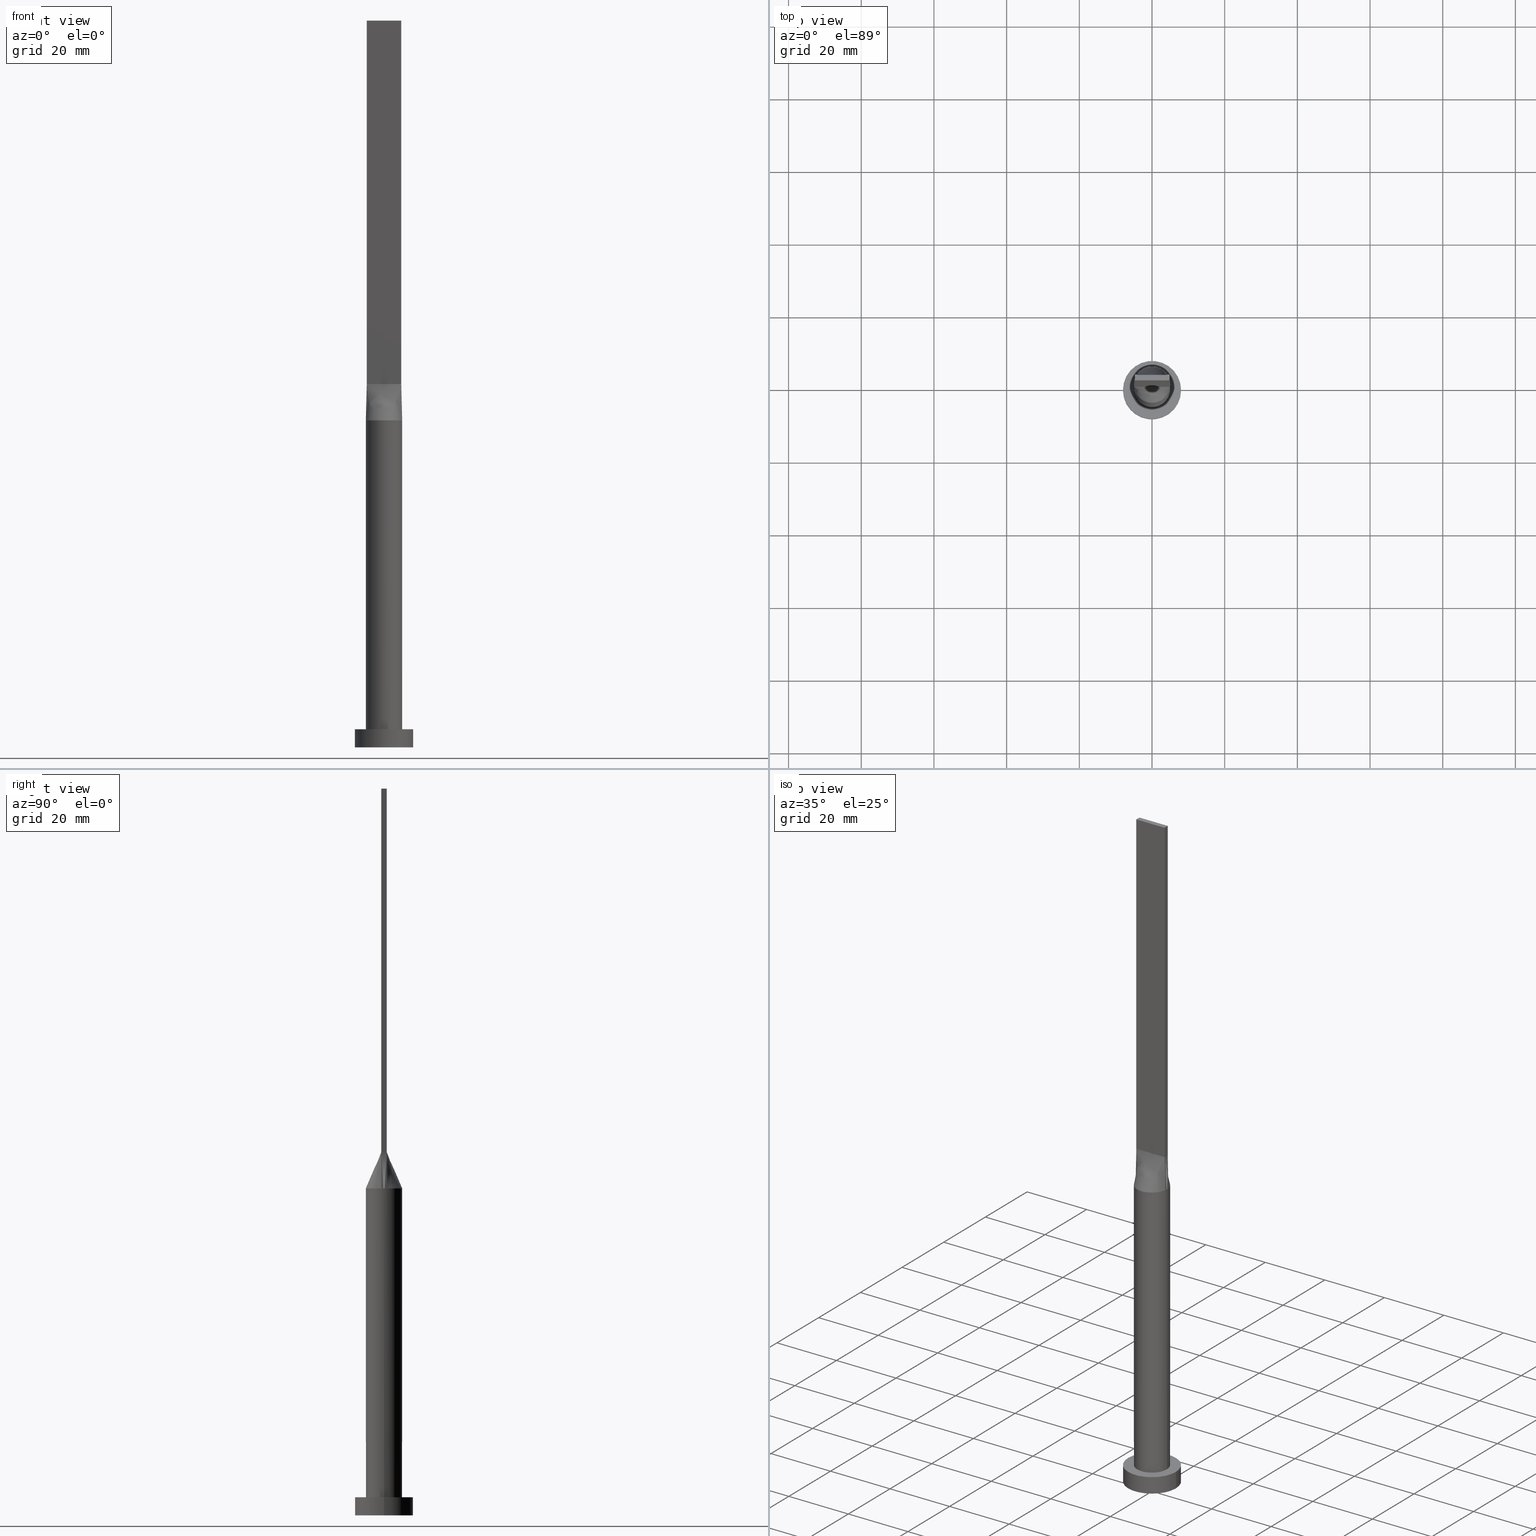
[diagram: canonical four-view strip — front | top / right | iso, engineering-drawing reading convention]
A machine part, canonical four-view strip (front | top / right | iso — engineering-drawing reading convention). The complete STEP part file that produces these views, byte-faithful:
ISO-10303-21;
HEADER;
FILE_DESCRIPTION (( 'STEP AP203' ),
    '1' );
FILE_NAME ('9c47.STEP',
    '2023-02-13T09:34:55',
    ( '' ),
    ( '' ),
    'SwSTEP 2.0',
    'SolidWorks 2019',
    '' );
FILE_SCHEMA (( 'CONFIG_CONTROL_DESIGN' ));
ENDSEC;

DATA;
#1 = CARTESIAN_POINT ( 'NONE',  ( -4.750000000000000000, -0.7499999999999991118, 100.0000000000000000 ) ) ;
#2 = ORIENTED_EDGE ( 'NONE', *, *, #196, .F. ) ;
#3 = VECTOR ( 'NONE', #470, 1000.000000000000000 ) ;
#4 = DATE_AND_TIME ( #533, #391 ) ;
#5 = CARTESIAN_POINT ( 'NONE',  ( 3.958333333333330373, 0.7500000000000002220, 100.0000000000000000 ) ) ;
#6 = CARTESIAN_POINT ( 'NONE',  ( -4.753727492665065668, -1.629988260829201119, 90.00000000000002842 ) ) ;
#7 = EDGE_CURVE ( 'NONE', #398, #416, #492, .T. ) ;
#8 = CARTESIAN_POINT ( 'NONE',  ( 0.7119876437238013001, 4.961551549233180758, 90.00000000000002842 ) ) ;
#9 = PRODUCT_DEFINITION_SHAPE ( 'NONE', 'NONE',  #521 ) ;
#10 = CARTESIAN_POINT ( 'NONE',  ( -0.3560391241594598188, -5.000000000000001776, 90.00000000000002842 ) ) ;
#11 = CARTESIAN_POINT ( 'NONE',  ( -3.168723755431092748, 3.881165404529570484, 90.00000000000000000 ) ) ;
#12 = CARTESIAN_POINT ( 'NONE',  ( -3.404830936252120299, -3.673931880027065056, 90.00000000000002842 ) ) ;
#13 = EDGE_CURVE ( 'NONE', #149, #103, #350, .T. ) ;
#14 = B_SPLINE_SURFACE_WITH_KNOTS ( 'NONE', 3, 1, ( 
 ( #154, #338 ),
 ( #209, #249 ),
 ( #252, #5 ),
 ( #159, #197 ),
 ( #392, #109 ),
 ( #447, #437 ),
 ( #292, #245 ),
 ( #300, #582 ),
 ( #530, #19 ),
 ( #15, #489 ),
 ( #55, #434 ),
 ( #8, #445 ),
 ( #157, #486 ),
 ( #60, #344 ),
 ( #199, #386 ),
 ( #341, #388 ),
 ( #111, #525 ),
 ( #247, #440 ),
 ( #576, #399 ),
 ( #11, #206 ),
 ( #396, #585 ),
 ( #534, #284 ),
 ( #148, #336 ),
 ( #334, #107 ),
 ( #289, #484 ),
 ( #504, #256 ) ),
 .UNSPECIFIED., .F., .F., .F.,
 ( 4, 2, 2, 2, 2, 2, 2, 2, 2, 2, 2, 2, 4 ),
 ( 2, 2 ),
 ( 0.000000000000000000, 0.1250000000000001388, 0.2500000000000002220, 0.3125000000000002776, 0.3750000000000002776, 0.4375000000000002776, 0.5000000000000002220, 0.5625000000000002220, 0.6250000000000001110, 0.6875000000000001110, 0.7500000000000001110, 0.8750000000000001110, 1.000000000000000000 ),
 ( 0.000000000000000000, 1.000000000000000000 ),
 .UNSPECIFIED. ) ;
#15 = CARTESIAN_POINT ( 'NONE',  ( 1.732223102076450250, 4.702695359254404295, 90.00000000000000000 ) ) ;
#16 = CARTESIAN_POINT ( 'NONE',  ( -2.643217737595827010, -4.256483892511436551, 90.00000000000000000 ) ) ;
#17 = ORIENTED_EDGE ( 'NONE', *, *, #41, .T. ) ;
#18 = EDGE_CURVE ( 'NONE', #87, #149, #441, .T. ) ;
#19 = CARTESIAN_POINT ( 'NONE',  ( 1.385416666666657193, 0.7500000000000002220, 100.0000000000000000 ) ) ;
#20 = CC_DESIGN_PERSON_AND_ORGANIZATION_ASSIGNMENT ( #139, #233, ( #517 ) ) ;
#21 = CARTESIAN_POINT ( 'NONE',  ( 4.938814826645345768, 0.7798128673650538412, 90.00000000000001421 ) ) ;
#22 = ORIENTED_EDGE ( 'NONE', *, *, #429, .F. ) ;
#23 = FACE_OUTER_BOUND ( 'NONE', #105, .T. ) ;
#24 = CARTESIAN_POINT ( 'NONE',  ( -4.750000000000000000, 0.7500000000000002220, 200.0000000000000000 ) ) ;
#25 = FACE_OUTER_BOUND ( 'NONE', #369, .T. ) ;
#26 = CARTESIAN_POINT ( 'NONE',  ( 4.750000000000000000, 0.7500000000000002220, 100.0000000000000000 ) ) ;
#27 = AXIS2_PLACEMENT_3D ( 'NONE', #244, #400, #119 ) ;
#28 = CARTESIAN_POINT ( 'NONE',  ( -8.000000000000000000, 0.000000000000000000, 5.000000000000000000 ) ) ;
#29 = CARTESIAN_POINT ( 'NONE',  ( 4.753727492665065668, -1.629988260829203561, 90.00000000000004263 ) ) ;
#30 = EDGE_LOOP ( 'NONE', ( #351, #556, #553, #114 ) ) ;
#31 = DIRECTION ( 'NONE',  ( 0.000000000000000000, 0.000000000000000000, 1.000000000000000000 ) ) ;
#32 = DIRECTION ( 'NONE',  ( -1.000000000000000000, 0.000000000000000000, 0.000000000000000000 ) ) ;
#33 = VERTEX_POINT ( 'NONE', #446 ) ;
#34 = CARTESIAN_POINT ( 'NONE',  ( 0.000000000000000000, 0.000000000000000000, 5.000000000000000000 ) ) ;
#35 = CARTESIAN_POINT ( 'NONE',  ( 3.166666666666673180, -0.7499999999999997780, 100.0000000000000000 ) ) ;
#36 = EDGE_LOOP ( 'NONE', ( #241, #306, #346, #259 ) ) ;
#37 = COORDINATED_UNIVERSAL_TIME_OFFSET ( 1, 0, .AHEAD. ) ;
#38 = CARTESIAN_POINT ( 'NONE',  ( -4.938821632323166178, -0.7798139456827060112, 90.00000000000001421 ) ) ;
#39 = ORIENTED_EDGE ( 'NONE', *, *, #323, .F. ) ;
#40 = CARTESIAN_POINT ( 'NONE',  ( 4.938814826645345768, 0.7798128673650538412, 90.00000000000001421 ) ) ;
#41 = EDGE_CURVE ( 'NONE', #33, #248, #155, .T. ) ;
#42 = CARTESIAN_POINT ( 'NONE',  ( -4.332026455536841070, 2.547220758687717801, 90.00000000000001421 ) ) ;
#43 = CIRCLE ( 'NONE', #77, 5.000000000000000000 ) ;
#44 = CC_DESIGN_PERSON_AND_ORGANIZATION_ASSIGNMENT ( #270, #466, ( #258 ) ) ;
#45 = EDGE_CURVE ( 'NONE', #465, #84, #467, .T. ) ;
#46 = DATE_AND_TIME ( #379, #404 ) ;
#47 = VECTOR ( 'NONE', #360, 1000.000000000000000 ) ;
#48 = LINE ( 'NONE', #427, #591 ) ;
#49 = PERSON_AND_ORGANIZATION ( #433, #205 ) ;
#50 = CARTESIAN_POINT ( 'NONE',  ( -4.979355367185885228, -0.5230561106082968204, 90.00000000000001421 ) ) ;
#51 = ORIENTED_EDGE ( 'NONE', *, *, #355, .T. ) ;
#52 = CARTESIAN_POINT ( 'NONE',  ( -5.000000000000000000, 0.000000000000000000, 90.00000000000001421 ) ) ;
#53 = CARTESIAN_POINT ( 'NONE',  ( -4.938814826645345768, -0.7798128673650532861, 90.00000000000001421 ) ) ;
#54 = AXIS2_PLACEMENT_3D ( 'NONE', #449, #176, #162 ) ;
#55 = CARTESIAN_POINT ( 'NONE',  ( 1.400150253878312823, 4.812847332616943419, 90.00000000000001421 ) ) ;
#56 = CARTESIAN_POINT ( 'NONE',  ( -0.7119876437238014111, -4.961551549233179870, 90.00000000000002842 ) ) ;
#57 = LINE ( 'NONE', #579, #286 ) ;
#58 = CARTESIAN_POINT ( 'NONE',  ( -4.874625637456154514, -1.186344398896584718, 90.00000000000004263 ) ) ;
#59 = DESIGN_CONTEXT ( 'detailed design', #487, 'design' ) ;
#60 = CARTESIAN_POINT ( 'NONE',  ( -0.3560391241594593192, 5.000000000000000000, 90.00000000000004263 ) ) ;
#61 = CARTESIAN_POINT ( 'NONE',  ( 1.400150253878312157, -4.812847332616943419, 90.00000000000001421 ) ) ;
#62 = PRODUCT_DEFINITION_FORMATION_WITH_SPECIFIED_SOURCE ( 'LIBOVOLN�', '', #517, .NOT_KNOWN. ) ;
#63 = ADVANCED_FACE ( 'NONE', ( #389 ), #108, .T. ) ;
#64 = ORIENTED_EDGE ( 'NONE', *, *, #130, .F. ) ;
#65 = DIRECTION ( 'NONE',  ( 0.000000000000000000, 0.000000000000000000, 1.000000000000000000 ) ) ;
#66 = VECTOR ( 'NONE', #357, 1000.000000000000000 ) ;
#67 = FACE_OUTER_BOUND ( 'NONE', #560, .T. ) ;
#68 = ADVANCED_BREP_SHAPE_REPRESENTATION ( '9c47', ( #97, #571 ), #309 ) ;
#69 = VERTEX_POINT ( 'NONE', #526 ) ;
#70 = CARTESIAN_POINT ( 'NONE',  ( 4.999812818728077701, 1.241126956226958231E-15, 90.00000000000001421 ) ) ;
#71 = FACE_OUTER_BOUND ( 'NONE', #482, .T. ) ;
#72 = CARTESIAN_POINT ( 'NONE',  ( 4.979355367185886116, 0.5230561106082972644, 90.00000000000001421 ) ) ;
#73 = ADVANCED_FACE ( 'NONE', ( #253 ), #301, .T. ) ;
#74 = CARTESIAN_POINT ( 'NONE',  ( 2.353781608410061121, -4.424438117685769889, 90.00000000000000000 ) ) ;
#75 = CIRCLE ( 'NONE', #193, 5.000000000000000000 ) ;
#76 = EDGE_LOOP ( 'NONE', ( #373, #599, #179, #182 ) ) ;
#77 = AXIS2_PLACEMENT_3D ( 'NONE', #260, #601, #85 ) ;
#78 = DIRECTION ( 'NONE',  ( 1.000000000000000000, 0.000000000000000000, 0.000000000000000000 ) ) ;
#79 = CARTESIAN_POINT ( 'NONE',  ( -8.000000000000000000, 0.000000000000000000, 5.000000000000000000 ) ) ;
#80 = VERTEX_POINT ( 'NONE', #21 ) ;
#81 = DIRECTION ( 'NONE',  ( 0.000000000000000000, 0.000000000000000000, 1.000000000000000000 ) ) ;
#82 = DIRECTION ( 'NONE',  ( 0.01887803397728733332, -0.002980742206940074218, 0.9998173508241633423 ) ) ;
#83 = ADVANCED_FACE ( 'NONE', ( #67 ), #428, .T. ) ;
#84 = VERTEX_POINT ( 'NONE', #261 ) ;
#85 = DIRECTION ( 'NONE',  ( 1.000000000000000000, 0.000000000000000000, 0.000000000000000000 ) ) ;
#86 = CARTESIAN_POINT ( 'NONE',  ( 4.874625637456156291, -1.186344398896586938, 90.00000000000001421 ) ) ;
#87 = VERTEX_POINT ( 'NONE', #314 ) ;
#88 = AXIS2_PLACEMENT_3D ( 'NONE', #94, #279, #274 ) ;
#89 = LOCAL_TIME ( 10, 34, 55.00000000000000000, #507 ) ;
#90 = PERSON_AND_ORGANIZATION_ROLE ( 'design_supplier' ) ;
#91 = CARTESIAN_POINT ( 'NONE',  ( 0.7119876437238013001, 4.961551549233180758, 90.00000000000002842 ) ) ;
#92 = VERTEX_POINT ( 'NONE', #598 ) ;
#93 = MECHANICAL_CONTEXT ( 'NONE', #568, 'mechanical' ) ;
#94 = CARTESIAN_POINT ( 'NONE',  ( 0.000000000000000000, 0.000000000000000000, 90.00000000000001421 ) ) ;
#95 = CARTESIAN_POINT ( 'NONE',  ( 0.3560391241594590972, 5.000000000000001776, 90.00000000000002842 ) ) ;
#96 = EDGE_CURVE ( 'NONE', #248, #195, #267, .T. ) ;
#97 = MANIFOLD_SOLID_BREP ( 'P�idat vysunut�m5', #126 ) ;
#98 = LOCAL_TIME ( 10, 34, 55.00000000000000000, #316 ) ;
#99 = LINE ( 'NONE', #508, #144 ) ;
#100 = PERSON_AND_ORGANIZATION ( #433, #205 ) ;
#101 = AXIS2_PLACEMENT_3D ( 'NONE', #387, #110, #577 ) ;
#102 = CARTESIAN_POINT ( 'NONE',  ( -4.753727492665067444, 1.629988260829202007, 90.00000000000005684 ) ) ;
#103 = VERTEX_POINT ( 'NONE', #595 ) ;
#104 = FACE_OUTER_BOUND ( 'NONE', #76, .T. ) ;
#105 = EDGE_LOOP ( 'NONE', ( #384, #503, #592, #51 ) ) ;
#106 = COORDINATED_UNIVERSAL_TIME_OFFSET ( 1, 0, .AHEAD. ) ;
#107 = CARTESIAN_POINT ( 'NONE',  ( -3.958333333333336146, 0.7500000000000002220, 100.0000000000000000 ) ) ;
#108 = PLANE ( 'NONE',  #272 ) ;
#109 = CARTESIAN_POINT ( 'NONE',  ( 2.770833333333326376, 0.7500000000000002220, 100.0000000000000000 ) ) ;
#110 = DIRECTION ( 'NONE',  ( 0.000000000000000000, 0.000000000000000000, 1.000000000000000000 ) ) ;
#111 = CARTESIAN_POINT ( 'NONE',  ( -1.732223102076449806, 4.702695359254402518, 89.99999999999997158 ) ) ;
#112 = CARTESIAN_POINT ( 'NONE',  ( 0.1979166666666740126, -0.7499999999999994449, 100.0000000000000000 ) ) ;
#113 = EDGE_CURVE ( 'NONE', #588, #87, #228, .T. ) ;
#114 = ORIENTED_EDGE ( 'NONE', *, *, #536, .F. ) ;
#115 = DIRECTION ( 'NONE',  ( -0.000000000000000000, -0.000000000000000000, -1.000000000000000000 ) ) ;
#116 = CARTESIAN_POINT ( 'NONE',  ( 4.844407413322673328, -0.7649064336825285304, 95.00000000000000000 ) ) ;
#117 = CIRCLE ( 'NONE', #225, 8.000000000000000000 ) ;
#118 = CARTESIAN_POINT ( 'NONE',  ( 4.938814826645345768, 0.7798128673650538412, 90.00000000000001421 ) ) ;
#119 = DIRECTION ( 'NONE',  ( -1.000000000000000000, 0.000000000000000000, 0.000000000000000000 ) ) ;
#120 = FACE_OUTER_BOUND ( 'NONE', #36, .T. ) ;
#121 = LINE ( 'NONE', #305, #512 ) ;
#122 = CARTESIAN_POINT ( 'NONE',  ( 8.000000000000000000, 9.797174393178825657E-16, 5.000000000000000000 ) ) ;
#123 = FACE_OUTER_BOUND ( 'NONE', #265, .T. ) ;
#124 = CARTESIAN_POINT ( 'NONE',  ( 4.750000000000000000, -0.2499999999999990286, 100.0000000000000000 ) ) ;
#125 = CARTESIAN_POINT ( 'NONE',  ( 4.750000000000000000, 0.7500000000000002220, 200.0000000000000000 ) ) ;
#126 = CLOSED_SHELL ( 'NONE', ( #172, #201, #569, #478, #472, #73, #83, #578, #296, #390, #617, #439, #153, #543, #63 ) ) ;
#127 = VERTEX_POINT ( 'NONE', #79 ) ;
#128 = CARTESIAN_POINT ( 'NONE',  ( 4.750000000000000000, 0.5000000000000006661, 100.0000000000000000 ) ) ;
#129 = CARTESIAN_POINT ( 'NONE',  ( 2.177083333333341475, -0.7499999999999997780, 100.0000000000000000 ) ) ;
#130 = EDGE_CURVE ( 'NONE', #221, #362, #519, .T. ) ;
#131 = ORIENTED_EDGE ( 'NONE', *, *, #277, .F. ) ;
#132 = APPROVAL_STATUS ( 'not_yet_approved' ) ;
#133 = LINE ( 'NONE', #213, #66 ) ;
#134 = EDGE_LOOP ( 'NONE', ( #283, #366 ) ) ;
#135 = AXIS2_PLACEMENT_3D ( 'NONE', #411, #459, #32 ) ;
#136 = APPROVAL_STATUS ( 'not_yet_approved' ) ;
#137 = CARTESIAN_POINT ( 'NONE',  ( -0.3560391241594593192, 5.000000000000000000, 90.00000000000004263 ) ) ;
#138 = VECTOR ( 'NONE', #580, 1000.000000000000000 ) ;
#139 = PERSON_AND_ORGANIZATION ( #433, #205 ) ;
#140 = CARTESIAN_POINT ( 'NONE',  ( -4.750000000000000000, 0.4999999999999997780, 100.0000000000000000 ) ) ;
#141 = FACE_OUTER_BOUND ( 'NONE', #226, .T. ) ;
#142 = CARTESIAN_POINT ( 'NONE',  ( -4.999625637456156291, 0.2615280553041492984, 90.00000000000001421 ) ) ;
#143 = APPROVAL_DATE_TIME ( #563, #262 ) ;
#144 = VECTOR ( 'NONE', #518, 1000.000000000000114 ) ;
#145 = CC_DESIGN_APPROVAL ( #522, ( #258 ) ) ;
#146 = CARTESIAN_POINT ( 'NONE',  ( -2.643217737595827455, 4.256483892511438327, 90.00000000000000000 ) ) ;
#147 = ORIENTED_EDGE ( 'NONE', *, *, #18, .T. ) ;
#148 = CARTESIAN_POINT ( 'NONE',  ( -4.332026455536841070, 2.547220758687717801, 90.00000000000001421 ) ) ;
#149 = VERTEX_POINT ( 'NONE', #545 ) ;
#150 = DIRECTION ( 'NONE',  ( 1.000000000000000000, 2.664535259100375697E-15, 0.000000000000000000 ) ) ;
#151 = CARTESIAN_POINT ( 'NONE',  ( -4.750000000000000000, -0.7499999999999991118, 100.0000000000000000 ) ) ;
#152 = APPROVAL_ROLE ( '' ) ;
#153 = ADVANCED_FACE ( 'NONE', ( #71 ), #367, .F. ) ;
#154 = CARTESIAN_POINT ( 'NONE',  ( 4.938814826645345768, 0.7798128673650542853, 90.00000000000001421 ) ) ;
#155 = LINE ( 'NONE', #116, #550 ) ;
#156 = EDGE_CURVE ( 'NONE', #87, #69, #133, .T. ) ;
#157 = CARTESIAN_POINT ( 'NONE',  ( 0.3560391241594590972, 5.000000000000001776, 90.00000000000002842 ) ) ;
#158 = CARTESIAN_POINT ( 'NONE',  ( -0.7916666666666584140, -0.7499999999999995559, 100.0000000000000000 ) ) ;
#159 = CARTESIAN_POINT ( 'NONE',  ( 4.332026455536839293, 2.547220758687718689, 90.00000000000005684 ) ) ;
#160 = CARTESIAN_POINT ( 'NONE',  ( 1.732223102076449583, -4.702695359254404295, 90.00000000000000000 ) ) ;
#161 = ORIENTED_EDGE ( 'NONE', *, *, #7, .T. ) ;
#162 = DIRECTION ( 'NONE',  ( -0.000000000000000000, 0.000000000000000000, -1.000000000000000000 ) ) ;
#163 = CARTESIAN_POINT ( 'NONE',  ( -2.770833333333329040, -0.7499999999999994449, 100.0000000000000284 ) ) ;
#164 = ORIENTED_EDGE ( 'NONE', *, *, #223, .T. ) ;
#165 = CARTESIAN_POINT ( 'NONE',  ( 0.000000000000000000, 0.000000000000000000, 5.000000000000000000 ) ) ;
#166 = AXIS2_PLACEMENT_3D ( 'NONE', #417, #494, #181 ) ;
#167 = CARTESIAN_POINT ( 'NONE',  ( 4.750000000000000000, -0.7499999999999997780, 100.0000000000000000 ) ) ;
#168 = EDGE_LOOP ( 'NONE', ( #22, #186 ) ) ;
#169 = CARTESIAN_POINT ( 'NONE',  ( 4.750000000000000000, -0.7499999999999997780, 200.0000000000000000 ) ) ;
#170 = FACE_OUTER_BOUND ( 'NONE', #30, .T. ) ;
#171 = ORIENTED_EDGE ( 'NONE', *, *, #280, .T. ) ;
#172 = ADVANCED_FACE ( 'NONE', ( #123 ), #552, .T. ) ;
#173 = CARTESIAN_POINT ( 'NONE',  ( 4.750000000000000000, -0.7499999999999997780, 100.0000000000000000 ) ) ;
#174 = CARTESIAN_POINT ( 'NONE',  ( 4.750000000000000000, 0.7500000000000002220, 100.0000000000000000 ) ) ;
#175 = ORIENTED_EDGE ( 'NONE', *, *, #461, .T. ) ;
#176 = DIRECTION ( 'NONE',  ( 1.000000000000000000, 0.000000000000000000, -0.000000000000000000 ) ) ;
#177 = EDGE_CURVE ( 'NONE', #103, #195, #499, .T. ) ;
#178 = CARTESIAN_POINT ( 'NONE',  ( 4.354166666666667851, -0.7499999999999997780, 100.0000000000000000 ) ) ;
#179 = ORIENTED_EDGE ( 'NONE', *, *, #365, .F. ) ;
#180 = LINE ( 'NONE', #370, #3 ) ;
#181 = DIRECTION ( 'NONE',  ( 1.000000000000000000, 0.000000000000000000, 0.000000000000000000 ) ) ;
#182 = ORIENTED_EDGE ( 'NONE', *, *, #586, .F. ) ;
#183 = PERSON_AND_ORGANIZATION ( #433, #205 ) ;
#184 = FACE_OUTER_BOUND ( 'NONE', #546, .T. ) ;
#185 = EDGE_CURVE ( 'NONE', #221, #92, #121, .T. ) ;
#186 = ORIENTED_EDGE ( 'NONE', *, *, #45, .F. ) ;
#187 = B_SPLINE_SURFACE_WITH_KNOTS ( 'NONE', 3, 1, ( 
 ( #407, #173 ),
 ( #597, #605 ),
 ( #359, #124 ),
 ( #304, #495 ),
 ( #72, #128 ),
 ( #118, #500 ) ),
 .UNSPECIFIED., .F., .F., .F.,
 ( 4, 2, 4 ),
 ( 2, 2 ),
 ( 0.000000000000000000, 0.5000000000000000000, 1.000000000000000000 ),
 ( 0.000000000000000000, 1.000000000000000000 ),
 .UNSPECIFIED. ) ;
#188 = CARTESIAN_POINT ( 'NONE',  ( 4.753727492665065668, 1.629988260829201563, 90.00000000000002842 ) ) ;
#189 = PLANE ( 'NONE',  #475 ) ;
#190 = CARTESIAN_POINT ( 'NONE',  ( -4.938814826645345768, -0.7798128673650532861, 90.00000000000001421 ) ) ;
#191 = EDGE_CURVE ( 'NONE', #229, #33, #75, .T. ) ;
#192 = CARTESIAN_POINT ( 'NONE',  ( 2.643217737595826566, 4.256483892511437439, 90.00000000000001421 ) ) ;
#193 = AXIS2_PLACEMENT_3D ( 'NONE', #496, #257, #501 ) ;
#194 = CARTESIAN_POINT ( 'NONE',  ( -4.874625637456156291, 1.186344398896586716, 90.00000000000002842 ) ) ;
#195 = VERTEX_POINT ( 'NONE', #26 ) ;
#196 = EDGE_CURVE ( 'NONE', #149, #248, #217, .T. ) ;
#197 = CARTESIAN_POINT ( 'NONE',  ( 3.166666666666660745, 0.7500000000000002220, 100.0000000000000000 ) ) ;
#198 = DIRECTION ( 'NONE',  ( -0.01887803397728733332, 0.002980742206940388637, 0.9998173508241633423 ) ) ;
#199 = CARTESIAN_POINT ( 'NONE',  ( -0.7119876437238006339, 4.961551549233178982, 90.00000000000001421 ) ) ;
#200 = CARTESIAN_POINT ( 'NONE',  ( -0.1979166666666593299, -0.7499999999999994449, 100.0000000000000000 ) ) ;
#201 = ADVANCED_FACE ( 'NONE', ( #170 ), #220, .T. ) ;
#202 = CARTESIAN_POINT ( 'NONE',  ( -4.999812818728077701, -1.193032336741890821E-15, 90.00000000000001421 ) ) ;
#203 = AXIS2_PLACEMENT_3D ( 'NONE', #165, #31, #310 ) ;
#204 = CARTESIAN_POINT ( 'NONE',  ( 0.000000000000000000, 0.000000000000000000, 200.0000000000000000 ) ) ;
#205 = ORGANIZATION ( 'NEUR�EN�', 'NEUR�EN�', '' ) ;
#206 = CARTESIAN_POINT ( 'NONE',  ( -1.979166666666673402, 0.7500000000000002220, 100.0000000000000000 ) ) ;
#207 = CARTESIAN_POINT ( 'NONE',  ( -2.177083333333327708, -0.7499999999999995559, 100.0000000000000284 ) ) ;
#208 = ORIENTED_EDGE ( 'NONE', *, *, #218, .T. ) ;
#209 = CARTESIAN_POINT ( 'NONE',  ( 4.874625637456157179, 1.186344398896585606, 90.00000000000001421 ) ) ;
#210 = EDGE_CURVE ( 'NONE', #92, #69, #317, .T. ) ;
#211 = DIRECTION ( 'NONE',  ( -0.000000000000000000, -0.000000000000000000, -1.000000000000000000 ) ) ;
#212 = CARTESIAN_POINT ( 'NONE',  ( 0.000000000000000000, 0.000000000000000000, 5.000000000000000000 ) ) ;
#213 = CARTESIAN_POINT ( 'NONE',  ( -4.750000000000000000, -0.7499999999999991118, 200.0000000000000000 ) ) ;
#214 = VECTOR ( 'NONE', #115, 1000.000000000000000 ) ;
#215 = ORIENTED_EDGE ( 'NONE', *, *, #277, .T. ) ;
#216 = DIRECTION ( 'NONE',  ( -0.000000000000000000, -0.000000000000000000, -1.000000000000000000 ) ) ;
#217 = LINE ( 'NONE', #455, #570 ) ;
#218 = EDGE_CURVE ( 'NONE', #69, #248, #48, .T. ) ;
#219 = DIRECTION ( 'NONE',  ( -0.000000000000000000, -0.000000000000000000, -1.000000000000000000 ) ) ;
#220 = CYLINDRICAL_SURFACE ( 'NONE', #135, 8.000000000000000000 ) ;
#221 = VERTEX_POINT ( 'NONE', #240 ) ;
#222 = CARTESIAN_POINT ( 'NONE',  ( 0.000000000000000000, 0.000000000000000000, 5.000000000000000000 ) ) ;
#223 = EDGE_CURVE ( 'NONE', #69, #229, #99, .T. ) ;
#224 = CARTESIAN_POINT ( 'NONE',  ( 3.404830936252118967, -3.673931880027069496, 90.00000000000002842 ) ) ;
#225 = AXIS2_PLACEMENT_3D ( 'NONE', #458, #451, #307 ) ;
#226 = EDGE_LOOP ( 'NONE', ( #520, #335, #131, #232 ) ) ;
#227 = CARTESIAN_POINT ( 'NONE',  ( 8.000000000000000000, 9.797174393178825657E-16, 0.000000000000000000 ) ) ;
#228 = LINE ( 'NONE', #24, #47 ) ;
#229 = VERTEX_POINT ( 'NONE', #38 ) ;
#230 = CALENDAR_DATE ( 2023, 13, 2 ) ;
#231 = CARTESIAN_POINT ( 'NONE',  ( 4.750000000000000000, 0.7500000000000002220, 200.0000000000000000 ) ) ;
#232 = ORIENTED_EDGE ( 'NONE', *, *, #177, .T. ) ;
#233 = PERSON_AND_ORGANIZATION_ROLE ( 'design_owner' ) ;
#234 = CARTESIAN_POINT ( 'NONE',  ( 0.000000000000000000, 0.000000000000000000, 5.000000000000000000 ) ) ;
#235 = CARTESIAN_POINT ( 'NONE',  ( -4.938831943662458812, 0.7798155886440081286, 90.00000000000001421 ) ) ;
#236 = PERSON_AND_ORGANIZATION ( #433, #205 ) ;
#237 = CARTESIAN_POINT ( 'NONE',  ( 4.874625637456157179, 1.186344398896585606, 90.00000000000001421 ) ) ;
#238 = CC_DESIGN_PERSON_AND_ORGANIZATION_ASSIGNMENT ( #183, #608, ( #521 ) ) ;
#239 = APPROVAL_DATE_TIME ( #4, #522 ) ;
#240 = CARTESIAN_POINT ( 'NONE',  ( -4.938831943662458812, 0.7798155886440081286, 90.00000000000001421 ) ) ;
#241 = ORIENTED_EDGE ( 'NONE', *, *, #600, .F. ) ;
#242 = AXIS2_PLACEMENT_3D ( 'NONE', #538, #263, #493 ) ;
#243 = CARTESIAN_POINT ( 'NONE',  ( 0.000000000000000000, 0.000000000000000000, 90.00000000000001421 ) ) ;
#244 = CARTESIAN_POINT ( 'NONE',  ( 0.000000000000000000, 0.000000000000000000, 90.00000000000001421 ) ) ;
#245 = CARTESIAN_POINT ( 'NONE',  ( 1.979166666666658081, 0.7500000000000002220, 100.0000000000000000 ) ) ;
#246 = CARTESIAN_POINT ( 'NONE',  ( -0.3958333333333254322, -0.7499999999999995559, 100.0000000000000000 ) ) ;
#247 = CARTESIAN_POINT ( 'NONE',  ( -2.353781608410062010, 4.424438117685770777, 89.99999999999997158 ) ) ;
#248 = VERTEX_POINT ( 'NONE', #422 ) ;
#249 = CARTESIAN_POINT ( 'NONE',  ( 4.354166666666665186, 0.7500000000000002220, 100.0000000000000000 ) ) ;
#250 = CARTESIAN_POINT ( 'NONE',  ( -1.732223102076450250, -4.702695359254402518, 90.00000000000001421 ) ) ;
#251 = ORIENTED_EDGE ( 'NONE', *, *, #586, .T. ) ;
#252 = CARTESIAN_POINT ( 'NONE',  ( 4.753727492665065668, 1.629988260829201563, 90.00000000000002842 ) ) ;
#253 = FACE_OUTER_BOUND ( 'NONE', #320, .T. ) ;
#254 = PLANE ( 'NONE',  #242 ) ;
#255 = CARTESIAN_POINT ( 'NONE',  ( 2.643217737595827455, -4.256483892511438327, 90.00000000000001421 ) ) ;
#256 = CARTESIAN_POINT ( 'NONE',  ( -4.750000000000000000, 0.7500000000000002220, 100.0000000000000000 ) ) ;
#257 = DIRECTION ( 'NONE',  ( 0.000000000000000000, 0.000000000000000000, 1.000000000000000000 ) ) ;
#258 = SECURITY_CLASSIFICATION ( '', '', #281 ) ;
#259 = ORIENTED_EDGE ( 'NONE', *, *, #429, .T. ) ;
#260 = CARTESIAN_POINT ( 'NONE',  ( 0.000000000000000000, 0.000000000000000000, 90.00000000000001421 ) ) ;
#261 = CARTESIAN_POINT ( 'NONE',  ( -8.000000000000000000, 0.000000000000000000, 0.000000000000000000 ) ) ;
#262 = APPROVAL ( #132, 'NEUR�EN�' ) ;
#263 = DIRECTION ( 'NONE',  ( 0.000000000000000000, 0.000000000000000000, 1.000000000000000000 ) ) ;
#264 = CARTESIAN_POINT ( 'NONE',  ( 3.958333333333336146, -0.7499999999999997780, 100.0000000000000000 ) ) ;
#265 = EDGE_LOOP ( 'NONE', ( #607, #161, #412, #574, #64, #39 ) ) ;
#266 = DIRECTION ( 'NONE',  ( 0.000000000000000000, 0.000000000000000000, 1.000000000000000000 ) ) ;
#267 = LINE ( 'NONE', #174, #425 ) ;
#268 = VECTOR ( 'NONE', #313, 1000.000000000000114 ) ;
#269 = ORIENTED_EDGE ( 'NONE', *, *, #13, .T. ) ;
#270 = PERSON_AND_ORGANIZATION ( #433, #205 ) ;
#271 = CARTESIAN_POINT ( 'NONE',  ( -5.000000000000000000, 0.000000000000000000, 5.000000000000000000 ) ) ;
#272 = AXIS2_PLACEMENT_3D ( 'NONE', #204, #590, #529 ) ;
#273 = EDGE_LOOP ( 'NONE', ( #315, #603, #409, #358 ) ) ;
#274 = DIRECTION ( 'NONE',  ( 1.000000000000000000, 0.000000000000000000, 0.000000000000000000 ) ) ;
#275 = APPROVAL_ROLE ( '' ) ;
#276 = CARTESIAN_POINT ( 'NONE',  ( -3.168723755431092748, 3.881165404529570484, 90.00000000000000000 ) ) ;
#277 = EDGE_CURVE ( 'NONE', #103, #588, #565, .T. ) ;
#278 = CARTESIAN_POINT ( 'NONE',  ( 0.000000000000000000, 0.000000000000000000, 0.000000000000000000 ) ) ;
#279 = DIRECTION ( 'NONE',  ( 0.000000000000000000, 0.000000000000000000, 1.000000000000000000 ) ) ;
#280 = EDGE_CURVE ( 'NONE', #362, #229, #347, .T. ) ;
#281 = SECURITY_CLASSIFICATION_LEVEL ( 'unclassified' ) ;
#282 = CARTESIAN_POINT ( 'NONE',  ( -0.7119876437238006339, 4.961551549233178982, 90.00000000000001421 ) ) ;
#283 = ORIENTED_EDGE ( 'NONE', *, *, #287, .F. ) ;
#284 = CARTESIAN_POINT ( 'NONE',  ( -2.770833333333339255, 0.7500000000000002220, 100.0000000000000000 ) ) ;
#285 = EDGE_LOOP ( 'NONE', ( #215, #457, #147, #269 ) ) ;
#286 = VECTOR ( 'NONE', #491, 1000.000000000000000 ) ;
#287 = EDGE_CURVE ( 'NONE', #331, #416, #432, .T. ) ;
#288 = CC_DESIGN_APPROVAL ( #262, ( #62 ) ) ;
#289 = CARTESIAN_POINT ( 'NONE',  ( -4.874625637456156291, 1.186344398896586716, 90.00000000000002842 ) ) ;
#290 = CARTESIAN_POINT ( 'NONE',  ( -1.583333333333326376, -0.7499999999999995559, 100.0000000000000284 ) ) ;
#291 = PERSON_AND_ORGANIZATION ( #433, #205 ) ;
#292 = CARTESIAN_POINT ( 'NONE',  ( 3.168723755431093192, 3.881165404529570040, 89.99999999999998579 ) ) ;
#293 = CARTESIAN_POINT ( 'NONE',  ( -4.354166666666666075, -0.7499999999999992228, 100.0000000000000142 ) ) ;
#294 = CARTESIAN_POINT ( 'NONE',  ( -4.750000000000000000, 0.7500000000000002220, 200.0000000000000000 ) ) ;
#295 = CARTESIAN_POINT ( 'NONE',  ( 0.7119876437238003009, -4.961551549233181646, 90.00000000000001421 ) ) ;
#296 = ADVANCED_FACE ( 'NONE', ( #184 ), #382, .T. ) ;
#297 = ORIENTED_EDGE ( 'NONE', *, *, #210, .F. ) ;
#298 = DATE_AND_TIME ( #611, #464 ) ;
#299 = VECTOR ( 'NONE', #419, 1000.000000000000000 ) ;
#300 = CARTESIAN_POINT ( 'NONE',  ( 2.643217737595826566, 4.256483892511437439, 90.00000000000001421 ) ) ;
#301 = CYLINDRICAL_SURFACE ( 'NONE', #27, 5.000000000000000000 ) ;
#302 = PLANE ( 'NONE',  #349 ) ;
#303 = CARTESIAN_POINT ( 'NONE',  ( -1.979166666666660745, -0.7499999999999995559, 100.0000000000000284 ) ) ;
#304 = CARTESIAN_POINT ( 'NONE',  ( 4.999625637456156291, 0.2615280553041483547, 90.00000000000001421 ) ) ;
#305 = CARTESIAN_POINT ( 'NONE',  ( -4.844407413322673328, 0.7649064336825274202, 95.00000000000000000 ) ) ;
#306 = ORIENTED_EDGE ( 'NONE', *, *, #564, .F. ) ;
#307 = DIRECTION ( 'NONE',  ( 1.000000000000000000, 0.000000000000000000, 0.000000000000000000 ) ) ;
#308 = CARTESIAN_POINT ( 'NONE',  ( 2.770833333333341031, -0.7499999999999997780, 100.0000000000000000 ) ) ;
#309 =( GEOMETRIC_REPRESENTATION_CONTEXT ( 3 ) GLOBAL_UNCERTAINTY_ASSIGNED_CONTEXT ( ( #333 ) ) GLOBAL_UNIT_ASSIGNED_CONTEXT ( ( #473, #554, #557 ) ) REPRESENTATION_CONTEXT ( 'NONE', 'WORKASPACE' ) );
#310 = DIRECTION ( 'NONE',  ( 1.000000000000000000, 0.000000000000000000, 0.000000000000000000 ) ) ;
#311 = DIRECTION ( 'NONE',  ( -0.000000000000000000, -0.000000000000000000, -1.000000000000000000 ) ) ;
#312 = ORIENTED_EDGE ( 'NONE', *, *, #223, .F. ) ;
#313 = DIRECTION ( 'NONE',  ( -0.01887803397728733332, -0.002980742206940009600, 0.9998173508241633423 ) ) ;
#314 = CARTESIAN_POINT ( 'NONE',  ( -4.750000000000000000, -0.7499999999999991118, 200.0000000000000000 ) ) ;
#315 = ORIENTED_EDGE ( 'NONE', *, *, #96, .T. ) ;
#316 = COORDINATED_UNIVERSAL_TIME_OFFSET ( 1, 0, .AHEAD. ) ;
#317 = LINE ( 'NONE', #468, #604 ) ;
#318 = AXIS2_PLACEMENT_3D ( 'NONE', #234, #378, #612 ) ;
#319 = APPROVAL_PERSON_ORGANIZATION ( #566, #262, #275 ) ;
#320 = EDGE_LOOP ( 'NONE', ( #510, #431, #406, #354, #596, #401 ) ) ;
#321 = CARTESIAN_POINT ( 'NONE',  ( 3.404830936252119411, 3.673931880027066388, 90.00000000000001421 ) ) ;
#322 = APPROVAL_DATE_TIME ( #46, #502 ) ;
#323 = EDGE_CURVE ( 'NONE', #80, #221, #423, .T. ) ;
#324 = CARTESIAN_POINT ( 'NONE',  ( 4.332026455536839293, 2.547220758687718689, 90.00000000000005684 ) ) ;
#325 = CARTESIAN_POINT ( 'NONE',  ( 4.750000000000000000, 0.7500000000000002220, 200.0000000000000000 ) ) ;
#326 = CARTESIAN_POINT ( 'NONE',  ( 1.732223102076450250, 4.702695359254404295, 90.00000000000000000 ) ) ;
#327 = PRODUCT_RELATED_PRODUCT_CATEGORY ( 'detail', '', ( #517 ) ) ;
#328 = EDGE_CURVE ( 'NONE', #480, #127, #402, .T. ) ;
#329 = APPROVAL_ROLE ( '' ) ;
#330 = CARTESIAN_POINT ( 'NONE',  ( -1.400150253878312823, 4.812847332616943419, 90.00000000000000000 ) ) ;
#331 = VERTEX_POINT ( 'NONE', #271 ) ;
#332 = AXIS2_PLACEMENT_3D ( 'NONE', #364, #414, #555 ) ;
#333 = UNCERTAINTY_MEASURE_WITH_UNIT (LENGTH_MEASURE( 1.000000000000000082E-05 ), #473, 'distance_accuracy_value', 'NONE');
#334 = CARTESIAN_POINT ( 'NONE',  ( -4.753727492665067444, 1.629988260829202007, 90.00000000000005684 ) ) ;
#335 = ORIENTED_EDGE ( 'NONE', *, *, #355, .F. ) ;
#336 = CARTESIAN_POINT ( 'NONE',  ( -3.166666666666671848, 0.7500000000000002220, 100.0000000000000000 ) ) ;
#337 = CARTESIAN_POINT ( 'NONE',  ( -4.332026455536839293, -2.547220758687717801, 90.00000000000005684 ) ) ;
#338 = CARTESIAN_POINT ( 'NONE',  ( 4.750000000000000000, 0.7500000000000002220, 100.0000000000000000 ) ) ;
#339 = CARTESIAN_POINT ( 'NONE',  ( 4.750000000000000000, -0.7499999999999997780, 200.0000000000000000 ) ) ;
#340 = VECTOR ( 'NONE', #211, 1000.000000000000000 ) ;
#341 = CARTESIAN_POINT ( 'NONE',  ( -1.400150253878312823, 4.812847332616943419, 90.00000000000000000 ) ) ;
#342 = EDGE_CURVE ( 'NONE', #362, #331, #481, .T. ) ;
#343 = CARTESIAN_POINT ( 'NONE',  ( 0.3560391241594588196, -5.000000000000000888, 90.00000000000002842 ) ) ;
#344 = CARTESIAN_POINT ( 'NONE',  ( -0.1979166666666745400, 0.7500000000000002220, 100.0000000000000000 ) ) ;
#345 = CARTESIAN_POINT ( 'NONE',  ( -3.958333333333332149, -0.7499999999999993339, 100.0000000000000142 ) ) ;
#346 = ORIENTED_EDGE ( 'NONE', *, *, #536, .T. ) ;
#347 = CIRCLE ( 'NONE', #88, 5.000000000000000000 ) ;
#348 = LINE ( 'NONE', #28, #415 ) ;
#349 = AXIS2_PLACEMENT_3D ( 'NONE', #212, #403, #413 ) ;
#350 = LINE ( 'NONE', #339, #138 ) ;
#351 = ORIENTED_EDGE ( 'NONE', *, *, #328, .F. ) ;
#352 = DIRECTION ( 'NONE',  ( -1.000000000000000000, 0.000000000000000000, 0.000000000000000000 ) ) ;
#353 = CARTESIAN_POINT ( 'NONE',  ( 4.938814826645345768, -0.7798128673650571718, 90.00000000000001421 ) ) ;
#354 = ORIENTED_EDGE ( 'NONE', *, *, #280, .F. ) ;
#355 = EDGE_CURVE ( 'NONE', #588, #92, #528, .T. ) ;
#356 = LINE ( 'NONE', #589, #268 ) ;
#357 = DIRECTION ( 'NONE',  ( -0.000000000000000000, -0.000000000000000000, -1.000000000000000000 ) ) ;
#358 = ORIENTED_EDGE ( 'NONE', *, *, #196, .T. ) ;
#359 = CARTESIAN_POINT ( 'NONE',  ( 4.999625637456156291, -0.2615280553041495204, 90.00000000000001421 ) ) ;
#360 = DIRECTION ( 'NONE',  ( 0.000000000000000000, -1.000000000000000000, 0.000000000000000000 ) ) ;
#361 = AXIS2_PLACEMENT_3D ( 'NONE', #222, #216, #352 ) ;
#362 = VERTEX_POINT ( 'NONE', #202 ) ;
#363 = CARTESIAN_POINT ( 'NONE',  ( 5.000000000000000000, 6.123233995736766282E-16, 5.000000000000000000 ) ) ;
#364 = CARTESIAN_POINT ( 'NONE',  ( -4.750000000000000000, -0.7499999999999991118, 200.0000000000000000 ) ) ;
#365 = EDGE_CURVE ( 'NONE', #195, #92, #57, .T. ) ;
#366 = ORIENTED_EDGE ( 'NONE', *, *, #456, .F. ) ;
#367 = PLANE ( 'NONE',  #332 ) ;
#368 = CC_DESIGN_PERSON_AND_ORGANIZATION_ASSIGNMENT ( #236, #426, ( #62 ) ) ;
#369 = EDGE_LOOP ( 'NONE', ( #469, #532 ) ) ;
#370 = CARTESIAN_POINT ( 'NONE',  ( 8.000000000000000000, 9.797174393178825657E-16, 5.000000000000000000 ) ) ;
#371 = CARTESIAN_POINT ( 'NONE',  ( -3.404830936252120299, 3.673931880027067720, 90.00000000000000000 ) ) ;
#372 = CIRCLE ( 'NONE', #381, 5.000000000000000000 ) ;
#373 = ORIENTED_EDGE ( 'NONE', *, *, #323, .T. ) ;
#374 = DIRECTION ( 'NONE',  ( 0.000000000000000000, 0.000000000000000000, 1.000000000000000000 ) ) ;
#375 = CARTESIAN_POINT ( 'NONE',  ( -4.750000000000000000, -0.2500000000000000000, 100.0000000000000000 ) ) ;
#376 = CALENDAR_DATE ( 2023, 13, 2 ) ;
#377 = EDGE_CURVE ( 'NONE', #33, #398, #372, .T. ) ;
#378 = DIRECTION ( 'NONE',  ( 0.000000000000000000, 0.000000000000000000, 1.000000000000000000 ) ) ;
#379 = CALENDAR_DATE ( 2023, 13, 2 ) ;
#380 = CARTESIAN_POINT ( 'NONE',  ( -1.732223102076449806, 4.702695359254402518, 89.99999999999997158 ) ) ;
#381 = AXIS2_PLACEMENT_3D ( 'NONE', #243, #65, #150 ) ;
#382 = B_SPLINE_SURFACE_WITH_KNOTS ( 'NONE', 3, 1, ( 
 ( #619, #513 ),
 ( #616, #140 ),
 ( #142, #471 ),
 ( #477, #375 ),
 ( #50, #383 ),
 ( #190, #1 ) ),
 .UNSPECIFIED., .F., .F., .F.,
 ( 4, 2, 4 ),
 ( 2, 2 ),
 ( 0.000000000000000000, 0.5000000000000000000, 1.000000000000000000 ),
 ( 0.000000000000000000, 1.000000000000000000 ),
 .UNSPECIFIED. ) ;
#383 = CARTESIAN_POINT ( 'NONE',  ( -4.750000000000000000, -0.4999999999999995559, 100.0000000000000000 ) ) ;
#384 = ORIENTED_EDGE ( 'NONE', *, *, #210, .T. ) ;
#385 = VECTOR ( 'NONE', #541, 1000.000000000000000 ) ;
#386 = CARTESIAN_POINT ( 'NONE',  ( -0.3958333333333418635, 0.7500000000000002220, 100.0000000000000000 ) ) ;
#387 = CARTESIAN_POINT ( 'NONE',  ( 0.000000000000000000, 0.000000000000000000, 0.000000000000000000 ) ) ;
#388 = CARTESIAN_POINT ( 'NONE',  ( -0.7916666666666754004, 0.7500000000000002220, 100.0000000000000000 ) ) ;
#389 = FACE_OUTER_BOUND ( 'NONE', #285, .T. ) ;
#390 = ADVANCED_FACE ( 'NONE', ( #104 ), #14, .T. ) ;
#391 = LOCAL_TIME ( 10, 34, 55.00000000000000000, #106 ) ;
#392 = CARTESIAN_POINT ( 'NONE',  ( 4.029217956433126524, 3.021257902548482477, 90.00000000000001421 ) ) ;
#393 = CARTESIAN_POINT ( 'NONE',  ( -2.353781608410061121, -4.424438117685769889, 89.99999999999998579 ) ) ;
#394 = VECTOR ( 'NONE', #539, 1000.000000000000000 ) ;
#395 = CC_DESIGN_DATE_AND_TIME_ASSIGNMENT ( #298, #575, ( #258 ) ) ;
#396 = CARTESIAN_POINT ( 'NONE',  ( -3.404830936252120299, 3.673931880027067720, 90.00000000000000000 ) ) ;
#397 = CARTESIAN_POINT ( 'NONE',  ( -4.750000000000000000, -0.7499999999999991118, 200.0000000000000000 ) ) ;
#398 = VERTEX_POINT ( 'NONE', #70 ) ;
#399 = CARTESIAN_POINT ( 'NONE',  ( -1.583333333333340587, 0.7500000000000002220, 100.0000000000000000 ) ) ;
#400 = DIRECTION ( 'NONE',  ( -0.000000000000000000, -0.000000000000000000, -1.000000000000000000 ) ) ;
#401 = ORIENTED_EDGE ( 'NONE', *, *, #287, .T. ) ;
#402 = CIRCLE ( 'NONE', #615, 8.000000000000000000 ) ;
#403 = DIRECTION ( 'NONE',  ( 0.000000000000000000, 0.000000000000000000, 1.000000000000000000 ) ) ;
#404 = LOCAL_TIME ( 10, 34, 55.00000000000000000, #421 ) ;
#405 = CARTESIAN_POINT ( 'NONE',  ( 0.000000000000000000, 0.000000000000000000, 90.00000000000001421 ) ) ;
#406 = ORIENTED_EDGE ( 'NONE', *, *, #191, .F. ) ;
#407 = CARTESIAN_POINT ( 'NONE',  ( 4.938814826645345768, -0.7798128673650550624, 90.00000000000001421 ) ) ;
#408 = DIRECTION ( 'NONE',  ( -0.000000000000000000, -0.000000000000000000, -1.000000000000000000 ) ) ;
#409 = ORIENTED_EDGE ( 'NONE', *, *, #13, .F. ) ;
#410 = PLANE ( 'NONE',  #527 ) ;
#411 = CARTESIAN_POINT ( 'NONE',  ( 0.000000000000000000, 0.000000000000000000, 5.000000000000000000 ) ) ;
#412 = ORIENTED_EDGE ( 'NONE', *, *, #456, .T. ) ;
#413 = DIRECTION ( 'NONE',  ( 1.000000000000000000, 0.000000000000000000, -0.000000000000000000 ) ) ;
#414 = DIRECTION ( 'NONE',  ( 6.847592668329501559E-17, 1.000000000000000000, -0.000000000000000000 ) ) ;
#415 = VECTOR ( 'NONE', #219, 1000.000000000000000 ) ;
#416 = VERTEX_POINT ( 'NONE', #363 ) ;
#417 = CARTESIAN_POINT ( 'NONE',  ( 0.000000000000000000, 0.000000000000000000, 90.00000000000001421 ) ) ;
#418 = ORIENTED_EDGE ( 'NONE', *, *, #185, .F. ) ;
#419 = DIRECTION ( 'NONE',  ( -1.000000000000000000, 0.000000000000000000, 0.000000000000000000 ) ) ;
#420 = ORIENTED_EDGE ( 'NONE', *, *, #191, .T. ) ;
#421 = COORDINATED_UNIVERSAL_TIME_OFFSET ( 1, 0, .AHEAD. ) ;
#422 = CARTESIAN_POINT ( 'NONE',  ( 4.750000000000000000, -0.7499999999999997780, 100.0000000000000000 ) ) ;
#423 = B_SPLINE_CURVE_WITH_KNOTS ( 'NONE', 3,
 ( #40, #237, #188, #324, #514, #321, #621, #192, #562, #326, #573, #91, #95, #137, #282, #330, #380, #567, #146, #276, #371, #474, #42, #102, #194, #235 ),
 .UNSPECIFIED., .F., .F.,
 ( 4, 2, 2, 2, 2, 2, 2, 2, 2, 2, 2, 2, 4 ),
 ( 0.000000000000000000, 0.1250000000000001388, 0.2500000000000002220, 0.3125000000000002776, 0.3750000000000002776, 0.4375000000000002776, 0.5000000000000002220, 0.5625000000000002220, 0.6250000000000001110, 0.6875000000000001110, 0.7500000000000001110, 0.8750000000000001110, 1.000000000000000000 ),
 .UNSPECIFIED. ) ;
#424 = DIRECTION ( 'NONE',  ( 1.000000000000000000, -6.847592668329501559E-17, 0.000000000000000000 ) ) ;
#425 = VECTOR ( 'NONE', #450, 1000.000000000000000 ) ;
#426 = PERSON_AND_ORGANIZATION_ROLE ( 'creator' ) ;
#427 = CARTESIAN_POINT ( 'NONE',  ( -4.750000000000000000, -0.7499999999999991118, 100.0000000000000000 ) ) ;
#428 = B_SPLINE_SURFACE_WITH_KNOTS ( 'NONE', 3, 1, ( 
 ( #53, #151 ),
 ( #58, #293 ),
 ( #6, #345 ),
 ( #337, #488 ),
 ( #485, #163 ),
 ( #12, #207 ),
 ( #531, #303 ),
 ( #16, #290 ),
 ( #393, #535 ),
 ( #250, #438 ),
 ( #583, #158 ),
 ( #56, #246 ),
 ( #10, #200 ),
 ( #343, #112 ),
 ( #295, #490 ),
 ( #61, #587 ),
 ( #160, #448 ),
 ( #74, #602 ),
 ( #255, #453 ),
 ( #463, #505 ),
 ( #224, #129 ),
 ( #609, #308 ),
 ( #606, #35 ),
 ( #29, #264 ),
 ( #86, #178 ),
 ( #353, #167 ) ),
 .UNSPECIFIED., .F., .F., .F.,
 ( 4, 2, 2, 2, 2, 2, 2, 2, 2, 2, 2, 2, 4 ),
 ( 2, 2 ),
 ( 0.000000000000000000, 0.1250000000000000278, 0.2500000000000001110, 0.3125000000000001665, 0.3750000000000002220, 0.4375000000000002220, 0.5000000000000002220, 0.5625000000000002220, 0.6250000000000002220, 0.6875000000000002220, 0.7500000000000003331, 0.8750000000000002220, 1.000000000000000000 ),
 ( 0.000000000000000000, 1.000000000000000000 ),
 .UNSPECIFIED. ) ;
#429 = EDGE_CURVE ( 'NONE', #84, #465, #117, .T. ) ;
#430 = DIRECTION ( 'NONE',  ( 0.000000000000000000, -1.000000000000000000, 0.000000000000000000 ) ) ;
#431 = ORIENTED_EDGE ( 'NONE', *, *, #377, .F. ) ;
#432 = CIRCLE ( 'NONE', #318, 5.000000000000000000 ) ;
#433 = PERSON ( 'NEUR�EN�', 'NEUR�EN�', 'NEUR�EN�', ('NEUR�EN�'), ('NEUR�EN�'), ('NEUR�EN�') ) ;
#434 = CARTESIAN_POINT ( 'NONE',  ( 0.7916666666666568597, 0.7500000000000002220, 100.0000000000000000 ) ) ;
#435 = CARTESIAN_POINT ( 'NONE',  ( 5.000000000000000000, 6.123233995736766282E-16, 90.00000000000001421 ) ) ;
#436 = CC_DESIGN_PERSON_AND_ORGANIZATION_ASSIGNMENT ( #100, #90, ( #62 ) ) ;
#437 = CARTESIAN_POINT ( 'NONE',  ( 2.177083333333325044, 0.7500000000000002220, 100.0000000000000000 ) ) ;
#438 = CARTESIAN_POINT ( 'NONE',  ( -0.9895833333333253767, -0.7499999999999995559, 100.0000000000000142 ) ) ;
#439 = ADVANCED_FACE ( 'NONE', ( #23 ), #498, .F. ) ;
#440 = CARTESIAN_POINT ( 'NONE',  ( -1.385416666666674068, 0.7500000000000002220, 100.0000000000000000 ) ) ;
#441 = LINE ( 'NONE', #397, #394 ) ;
#442 = CC_DESIGN_DATE_AND_TIME_ASSIGNMENT ( #614, #476, ( #521 ) ) ;
#443 = APPROVAL_STATUS ( 'not_yet_approved' ) ;
#444 = CC_DESIGN_SECURITY_CLASSIFICATION ( #258, ( #62 ) ) ;
#445 = CARTESIAN_POINT ( 'NONE',  ( 0.3958333333333243220, 0.7500000000000002220, 100.0000000000000000 ) ) ;
#446 = CARTESIAN_POINT ( 'NONE',  ( 4.938833698301754893, -0.7798158709413661738, 90.00000000000001421 ) ) ;
#447 = CARTESIAN_POINT ( 'NONE',  ( 3.404830936252119411, 3.673931880027066388, 90.00000000000001421 ) ) ;
#448 = CARTESIAN_POINT ( 'NONE',  ( 0.9895833333333419191, -0.7499999999999996669, 100.0000000000000000 ) ) ;
#449 = CARTESIAN_POINT ( 'NONE',  ( -4.750000000000000000, 0.7500000000000002220, 200.0000000000000000 ) ) ;
#450 = DIRECTION ( 'NONE',  ( -0.000000000000000000, 1.000000000000000000, -0.000000000000000000 ) ) ;
#451 = DIRECTION ( 'NONE',  ( 0.000000000000000000, 0.000000000000000000, 1.000000000000000000 ) ) ;
#452 = AXIS2_PLACEMENT_3D ( 'NONE', #34, #81, #78 ) ;
#453 = CARTESIAN_POINT ( 'NONE',  ( 1.583333333333341475, -0.7499999999999997780, 100.0000000000000000 ) ) ;
#454 = FACE_OUTER_BOUND ( 'NONE', #168, .T. ) ;
#455 = CARTESIAN_POINT ( 'NONE',  ( 4.750000000000000000, -0.7499999999999997780, 200.0000000000000000 ) ) ;
#456 = EDGE_CURVE ( 'NONE', #416, #331, #581, .T. ) ;
#457 = ORIENTED_EDGE ( 'NONE', *, *, #113, .T. ) ;
#458 = CARTESIAN_POINT ( 'NONE',  ( 0.000000000000000000, 0.000000000000000000, 0.000000000000000000 ) ) ;
#459 = DIRECTION ( 'NONE',  ( -0.000000000000000000, -0.000000000000000000, -1.000000000000000000 ) ) ;
#460 = ORIENTED_EDGE ( 'NONE', *, *, #218, .F. ) ;
#461 = EDGE_CURVE ( 'NONE', #398, #80, #43, .T. ) ;
#462 = FACE_OUTER_BOUND ( 'NONE', #497, .T. ) ;
#463 = CARTESIAN_POINT ( 'NONE',  ( 3.168723755431094080, -3.881165404529570484, 90.00000000000001421 ) ) ;
#464 = LOCAL_TIME ( 10, 34, 55.00000000000000000, #37 ) ;
#465 = VERTEX_POINT ( 'NONE', #227 ) ;
#466 = PERSON_AND_ORGANIZATION_ROLE ( 'classification_officer' ) ;
#467 = CIRCLE ( 'NONE', #101, 8.000000000000000000 ) ;
#468 = CARTESIAN_POINT ( 'NONE',  ( -4.750000000000000000, 0.7500000000000002220, 100.0000000000000000 ) ) ;
#469 = ORIENTED_EDGE ( 'NONE', *, *, #564, .T. ) ;
#470 = DIRECTION ( 'NONE',  ( -0.000000000000000000, -0.000000000000000000, -1.000000000000000000 ) ) ;
#471 = CARTESIAN_POINT ( 'NONE',  ( -4.750000000000000000, 0.2499999999999997224, 100.0000000000000000 ) ) ;
#472 = ADVANCED_FACE ( 'NONE', ( #454 ), #254, .F. ) ;
#473 =( LENGTH_UNIT ( ) NAMED_UNIT ( * ) SI_UNIT ( .MILLI., .METRE. ) );
#474 = CARTESIAN_POINT ( 'NONE',  ( -4.029217956433124748, 3.021257902548482033, 90.00000000000001421 ) ) ;
#475 = AXIS2_PLACEMENT_3D ( 'NONE', #325, #620, #515 ) ;
#476 = DATE_TIME_ROLE ( 'creation_date' ) ;
#477 = CARTESIAN_POINT ( 'NONE',  ( -4.999625637456156291, -0.2615280553041481326, 90.00000000000001421 ) ) ;
#478 = ADVANCED_FACE ( 'NONE', ( #547, #25 ), #302, .T. ) ;
#479 = DIRECTION ( 'NONE',  ( 1.000000000000000000, 0.000000000000000000, 0.000000000000000000 ) ) ;
#480 = VERTEX_POINT ( 'NONE', #122 ) ;
#481 = LINE ( 'NONE', #52, #214 ) ;
#482 = EDGE_LOOP ( 'NONE', ( #208, #2, #542, #613 ) ) ;
#483 = APPROVAL_PERSON_ORGANIZATION ( #291, #522, #152 ) ;
#484 = CARTESIAN_POINT ( 'NONE',  ( -4.354166666666667851, 0.7500000000000002220, 100.0000000000000000 ) ) ;
#485 = CARTESIAN_POINT ( 'NONE',  ( -4.029217956433126524, -3.021257902548482033, 90.00000000000001421 ) ) ;
#486 = CARTESIAN_POINT ( 'NONE',  ( 0.1979166666666585250, 0.7500000000000001110, 100.0000000000000000 ) ) ;
#487 = APPLICATION_CONTEXT ( 'configuration controlled 3d designs of mechanical parts and assemblies' ) ;
#488 = CARTESIAN_POINT ( 'NONE',  ( -3.166666666666662966, -0.7499999999999993339, 100.0000000000000142 ) ) ;
#489 = CARTESIAN_POINT ( 'NONE',  ( 0.9895833333333237114, 0.7500000000000002220, 100.0000000000000000 ) ) ;
#490 = CARTESIAN_POINT ( 'NONE',  ( 0.3958333333333413639, -0.7499999999999994449, 100.0000000000000000 ) ) ;
#491 = DIRECTION ( 'NONE',  ( -1.000000000000000000, -0.000000000000000000, -0.000000000000000000 ) ) ;
#492 = LINE ( 'NONE', #435, #340 ) ;
#493 = DIRECTION ( 'NONE',  ( 1.000000000000000000, 0.000000000000000000, -0.000000000000000000 ) ) ;
#494 = DIRECTION ( 'NONE',  ( 0.000000000000000000, 0.000000000000000000, 1.000000000000000000 ) ) ;
#495 = CARTESIAN_POINT ( 'NONE',  ( 4.750000000000000000, 0.2500000000000009992, 100.0000000000000000 ) ) ;
#496 = CARTESIAN_POINT ( 'NONE',  ( 0.000000000000000000, 0.000000000000000000, 90.00000000000001421 ) ) ;
#497 = EDGE_LOOP ( 'NONE', ( #524, #175, #251, #549, #610 ) ) ;
#498 = PLANE ( 'NONE',  #54 ) ;
#499 = LINE ( 'NONE', #125, #385 ) ;
#500 = CARTESIAN_POINT ( 'NONE',  ( 4.750000000000000000, 0.7500000000000002220, 100.0000000000000000 ) ) ;
#501 = DIRECTION ( 'NONE',  ( 1.000000000000000000, 0.000000000000000000, 0.000000000000000000 ) ) ;
#502 = APPROVAL ( #136, 'NEUR�EN�' ) ;
#503 = ORIENTED_EDGE ( 'NONE', *, *, #156, .F. ) ;
#504 = CARTESIAN_POINT ( 'NONE',  ( -4.938814826645345768, 0.7798128673650545073, 90.00000000000001421 ) ) ;
#505 = CARTESIAN_POINT ( 'NONE',  ( 1.979166666666674734, -0.7499999999999997780, 100.0000000000000000 ) ) ;
#506 = ORIENTED_EDGE ( 'NONE', *, *, #130, .T. ) ;
#507 = COORDINATED_UNIVERSAL_TIME_OFFSET ( 1, 0, .AHEAD. ) ;
#508 = CARTESIAN_POINT ( 'NONE',  ( -4.844407413322673328, -0.7649064336825261989, 95.00000000000000000 ) ) ;
#509 = APPROVAL_PERSON_ORGANIZATION ( #49, #502, #329 ) ;
#510 = ORIENTED_EDGE ( 'NONE', *, *, #7, .F. ) ;
#511 = APPLICATION_PROTOCOL_DEFINITION ( 'international standard', 'config_control_design', 1994, #568 ) ;
#512 = VECTOR ( 'NONE', #82, 1000.000000000000114 ) ;
#513 = CARTESIAN_POINT ( 'NONE',  ( -4.750000000000000000, 0.7500000000000002220, 100.0000000000000000 ) ) ;
#514 = CARTESIAN_POINT ( 'NONE',  ( 4.029217956433126524, 3.021257902548482477, 90.00000000000001421 ) ) ;
#515 = DIRECTION ( 'NONE',  ( 0.000000000000000000, -0.000000000000000000, -1.000000000000000000 ) ) ;
#516 = CARTESIAN_POINT ( 'NONE',  ( 0.000000000000000000, 0.000000000000000000, 5.000000000000000000 ) ) ;
#517 = PRODUCT ( '9c47', '9c47', '', ( #93 ) ) ;
#518 = DIRECTION ( 'NONE',  ( -0.01887803397728733332, -0.002980742206940063810, -0.9998173508241633423 ) ) ;
#519 = CIRCLE ( 'NONE', #166, 5.000000000000000000 ) ;
#520 = ORIENTED_EDGE ( 'NONE', *, *, #365, .T. ) ;
#521 = PRODUCT_DEFINITION ( 'NEZN�M�', '', #62, #59 ) ;
#522 = APPROVAL ( #443, 'NEUR�EN�' ) ;
#523 = DIRECTION ( 'NONE',  ( -0.000000000000000000, -0.000000000000000000, -1.000000000000000000 ) ) ;
#524 = ORIENTED_EDGE ( 'NONE', *, *, #377, .T. ) ;
#525 = CARTESIAN_POINT ( 'NONE',  ( -0.9895833333333416970, 0.7500000000000002220, 100.0000000000000000 ) ) ;
#526 = CARTESIAN_POINT ( 'NONE',  ( -4.750000000000000000, -0.7499999999999991118, 100.0000000000000000 ) ) ;
#527 = AXIS2_PLACEMENT_3D ( 'NONE', #169, #540, #266 ) ;
#528 = LINE ( 'NONE', #294, #558 ) ;
#529 = DIRECTION ( 'NONE',  ( 1.000000000000000000, 0.000000000000000000, -0.000000000000000000 ) ) ;
#530 = CARTESIAN_POINT ( 'NONE',  ( 2.353781608410062454, 4.424438117685770777, 90.00000000000001421 ) ) ;
#531 = CARTESIAN_POINT ( 'NONE',  ( -3.168723755431094524, -3.881165404529569152, 90.00000000000000000 ) ) ;
#532 = ORIENTED_EDGE ( 'NONE', *, *, #328, .T. ) ;
#533 = CALENDAR_DATE ( 2023, 13, 2 ) ;
#534 = CARTESIAN_POINT ( 'NONE',  ( -4.029217956433124748, 3.021257902548482033, 90.00000000000001421 ) ) ;
#535 = CARTESIAN_POINT ( 'NONE',  ( -1.385416666666659413, -0.7499999999999995559, 100.0000000000000284 ) ) ;
#536 = EDGE_CURVE ( 'NONE', #127, #84, #348, .T. ) ;
#537 = CIRCLE ( 'NONE', #203, 8.000000000000000000 ) ;
#538 = CARTESIAN_POINT ( 'NONE',  ( 0.000000000000000000, 0.000000000000000000, 0.000000000000000000 ) ) ;
#539 = DIRECTION ( 'NONE',  ( 1.000000000000000000, -6.847592668329501559E-17, 0.000000000000000000 ) ) ;
#540 = DIRECTION ( 'NONE',  ( -1.000000000000000000, 0.000000000000000000, 0.000000000000000000 ) ) ;
#541 = DIRECTION ( 'NONE',  ( -0.000000000000000000, -0.000000000000000000, -1.000000000000000000 ) ) ;
#542 = ORIENTED_EDGE ( 'NONE', *, *, #18, .F. ) ;
#543 = ADVANCED_FACE ( 'NONE', ( #594 ), #410, .F. ) ;
#544 = CARTESIAN_POINT ( 'NONE',  ( -4.750000000000000000, 0.7500000000000002220, 200.0000000000000000 ) ) ;
#545 = CARTESIAN_POINT ( 'NONE',  ( 4.750000000000000000, -0.7499999999999997780, 200.0000000000000000 ) ) ;
#546 = EDGE_LOOP ( 'NONE', ( #506, #171, #312, #297, #418 ) ) ;
#547 = FACE_BOUND ( 'NONE', #134, .T. ) ;
#548 = DIRECTION ( 'NONE',  ( -1.000000000000000000, 0.000000000000000000, 0.000000000000000000 ) ) ;
#549 = ORIENTED_EDGE ( 'NONE', *, *, #96, .F. ) ;
#550 = VECTOR ( 'NONE', #198, 1000.000000000000114 ) ;
#551 = CYLINDRICAL_SURFACE ( 'NONE', #361, 8.000000000000000000 ) ;
#552 = CYLINDRICAL_SURFACE ( 'NONE', #572, 5.000000000000000000 ) ;
#553 = ORIENTED_EDGE ( 'NONE', *, *, #45, .T. ) ;
#554 =( NAMED_UNIT ( * ) PLANE_ANGLE_UNIT ( ) SI_UNIT ( $, .RADIAN. ) );
#555 = DIRECTION ( 'NONE',  ( -1.000000000000000000, 6.847592668329501559E-17, 0.000000000000000000 ) ) ;
#556 = ORIENTED_EDGE ( 'NONE', *, *, #600, .T. ) ;
#557 =( NAMED_UNIT ( * ) SI_UNIT ( $, .STERADIAN. ) SOLID_ANGLE_UNIT ( ) );
#558 = VECTOR ( 'NONE', #523, 1000.000000000000000 ) ;
#559 = DIRECTION ( 'NONE',  ( 0.000000000000000000, 0.000000000000000000, 1.000000000000000000 ) ) ;
#560 = EDGE_LOOP ( 'NONE', ( #420, #17, #460, #164 ) ) ;
#561 = APPLICATION_PROTOCOL_DEFINITION ( 'international standard', 'config_control_design', 1994, #487 ) ;
#562 = CARTESIAN_POINT ( 'NONE',  ( 2.353781608410062454, 4.424438117685770777, 90.00000000000001421 ) ) ;
#563 = DATE_AND_TIME ( #230, #98 ) ;
#564 = EDGE_CURVE ( 'NONE', #127, #480, #537, .T. ) ;
#565 = LINE ( 'NONE', #231, #299 ) ;
#566 = PERSON_AND_ORGANIZATION ( #433, #205 ) ;
#567 = CARTESIAN_POINT ( 'NONE',  ( -2.353781608410062010, 4.424438117685770777, 89.99999999999997158 ) ) ;
#568 = APPLICATION_CONTEXT ( 'configuration controlled 3d designs of mechanical parts and assemblies' ) ;
#569 = ADVANCED_FACE ( 'NONE', ( #120 ), #551, .T. ) ;
#570 = VECTOR ( 'NONE', #408, 1000.000000000000000 ) ;
#571 = AXIS2_PLACEMENT_3D ( 'NONE', #278, #374, #618 ) ;
#572 = AXIS2_PLACEMENT_3D ( 'NONE', #405, #311, #548 ) ;
#573 = CARTESIAN_POINT ( 'NONE',  ( 1.400150253878312823, 4.812847332616943419, 90.00000000000001421 ) ) ;
#574 = ORIENTED_EDGE ( 'NONE', *, *, #342, .F. ) ;
#575 = DATE_TIME_ROLE ( 'classification_date' ) ;
#576 = CARTESIAN_POINT ( 'NONE',  ( -2.643217737595827455, 4.256483892511438327, 90.00000000000000000 ) ) ;
#577 = DIRECTION ( 'NONE',  ( 1.000000000000000000, 0.000000000000000000, 0.000000000000000000 ) ) ;
#578 = ADVANCED_FACE ( 'NONE', ( #462 ), #187, .T. ) ;
#579 = CARTESIAN_POINT ( 'NONE',  ( -4.750000000000000000, 0.7500000000000002220, 100.0000000000000000 ) ) ;
#580 = DIRECTION ( 'NONE',  ( 0.000000000000000000, 1.000000000000000000, 0.000000000000000000 ) ) ;
#581 = CIRCLE ( 'NONE', #452, 5.000000000000000000 ) ;
#582 = CARTESIAN_POINT ( 'NONE',  ( 1.583333333333324155, 0.7500000000000002220, 100.0000000000000000 ) ) ;
#583 = CARTESIAN_POINT ( 'NONE',  ( -1.400150253878313711, -4.812847332616943419, 90.00000000000004263 ) ) ;
#584 = SHAPE_DEFINITION_REPRESENTATION ( #9, #68 ) ;
#585 = CARTESIAN_POINT ( 'NONE',  ( -2.177083333333339699, 0.7500000000000002220, 100.0000000000000000 ) ) ;
#586 = EDGE_CURVE ( 'NONE', #80, #195, #356, .T. ) ;
#587 = CARTESIAN_POINT ( 'NONE',  ( 0.7916666666666752894, -0.7499999999999995559, 100.0000000000000000 ) ) ;
#588 = VERTEX_POINT ( 'NONE', #544 ) ;
#589 = CARTESIAN_POINT ( 'NONE',  ( 4.844407413322673328, 0.7649064336825270871, 95.00000000000000000 ) ) ;
#590 = DIRECTION ( 'NONE',  ( 0.000000000000000000, 0.000000000000000000, 1.000000000000000000 ) ) ;
#591 = VECTOR ( 'NONE', #424, 1000.000000000000000 ) ;
#592 = ORIENTED_EDGE ( 'NONE', *, *, #113, .F. ) ;
#593 = CC_DESIGN_APPROVAL ( #502, ( #521 ) ) ;
#594 = FACE_OUTER_BOUND ( 'NONE', #273, .T. ) ;
#595 = CARTESIAN_POINT ( 'NONE',  ( 4.750000000000000000, 0.7500000000000002220, 200.0000000000000000 ) ) ;
#596 = ORIENTED_EDGE ( 'NONE', *, *, #342, .T. ) ;
#597 = CARTESIAN_POINT ( 'NONE',  ( 4.979355367185886116, -0.5230561106082984857, 90.00000000000001421 ) ) ;
#598 = CARTESIAN_POINT ( 'NONE',  ( -4.750000000000000000, 0.7500000000000002220, 100.0000000000000000 ) ) ;
#599 = ORIENTED_EDGE ( 'NONE', *, *, #185, .T. ) ;
#600 = EDGE_CURVE ( 'NONE', #480, #465, #180, .T. ) ;
#601 = DIRECTION ( 'NONE',  ( 0.000000000000000000, 0.000000000000000000, 1.000000000000000000 ) ) ;
#602 = CARTESIAN_POINT ( 'NONE',  ( 1.385416666666674956, -0.7499999999999997780, 100.0000000000000000 ) ) ;
#603 = ORIENTED_EDGE ( 'NONE', *, *, #177, .F. ) ;
#604 = VECTOR ( 'NONE', #430, 1000.000000000000000 ) ;
#605 = CARTESIAN_POINT ( 'NONE',  ( 4.750000000000000000, -0.4999999999999992784, 100.0000000000000000 ) ) ;
#606 = CARTESIAN_POINT ( 'NONE',  ( 4.332026455536841070, -2.547220758687719577, 90.00000000000004263 ) ) ;
#607 = ORIENTED_EDGE ( 'NONE', *, *, #461, .F. ) ;
#608 = PERSON_AND_ORGANIZATION_ROLE ( 'creator' ) ;
#609 = CARTESIAN_POINT ( 'NONE',  ( 4.029217956433124748, -3.021257902548483365, 90.00000000000002842 ) ) ;
#610 = ORIENTED_EDGE ( 'NONE', *, *, #41, .F. ) ;
#611 = CALENDAR_DATE ( 2023, 13, 2 ) ;
#612 = DIRECTION ( 'NONE',  ( 1.000000000000000000, 0.000000000000000000, 0.000000000000000000 ) ) ;
#613 = ORIENTED_EDGE ( 'NONE', *, *, #156, .T. ) ;
#614 = DATE_AND_TIME ( #376, #89 ) ;
#615 = AXIS2_PLACEMENT_3D ( 'NONE', #516, #559, #479 ) ;
#616 = CARTESIAN_POINT ( 'NONE',  ( -4.979355367185886116, 0.5230561106082979306, 90.00000000000001421 ) ) ;
#617 = ADVANCED_FACE ( 'NONE', ( #141 ), #189, .F. ) ;
#618 = DIRECTION ( 'NONE',  ( 1.000000000000000000, 0.000000000000000000, 0.000000000000000000 ) ) ;
#619 = CARTESIAN_POINT ( 'NONE',  ( -4.938814826645345768, 0.7798128673650545073, 90.00000000000001421 ) ) ;
#620 = DIRECTION ( 'NONE',  ( 0.000000000000000000, -1.000000000000000000, 0.000000000000000000 ) ) ;
#621 = CARTESIAN_POINT ( 'NONE',  ( 3.168723755431093192, 3.881165404529570040, 89.99999999999998579 ) ) ;
ENDSEC;
END-ISO-10303-21;
